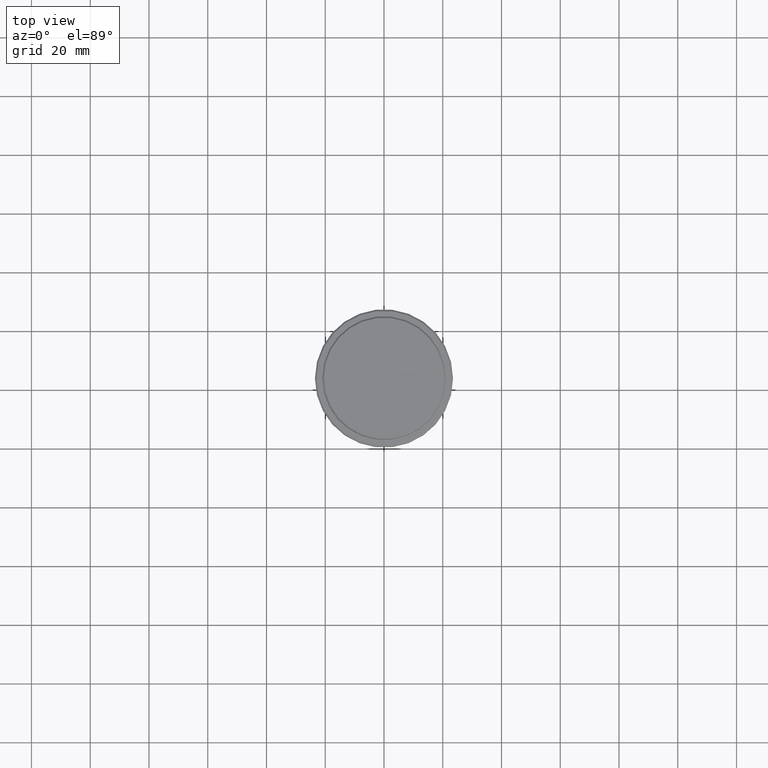
[diagram: clean part render]
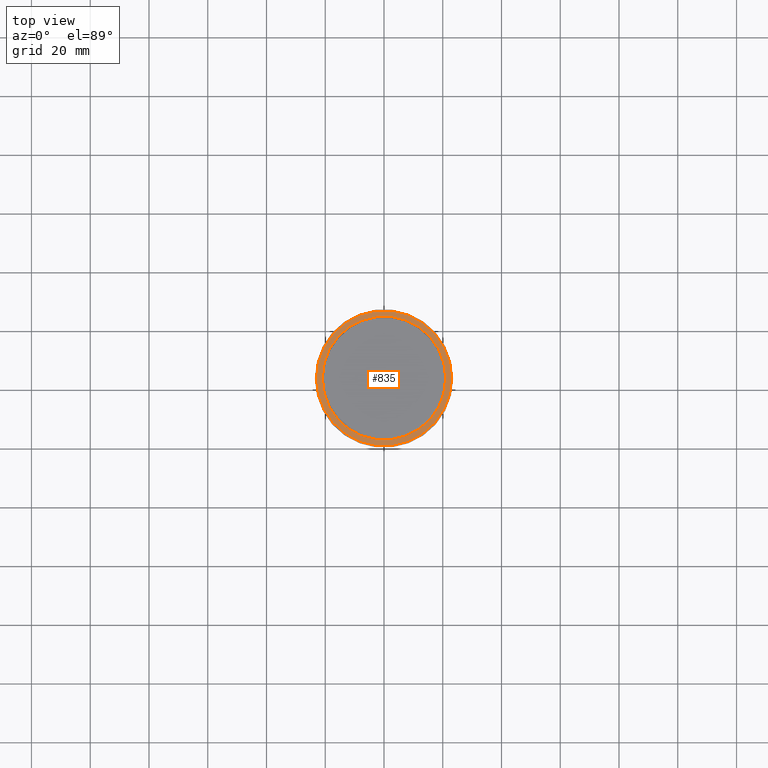
[diagram: same view with one face highlighted and labeled with its STEP entity id]
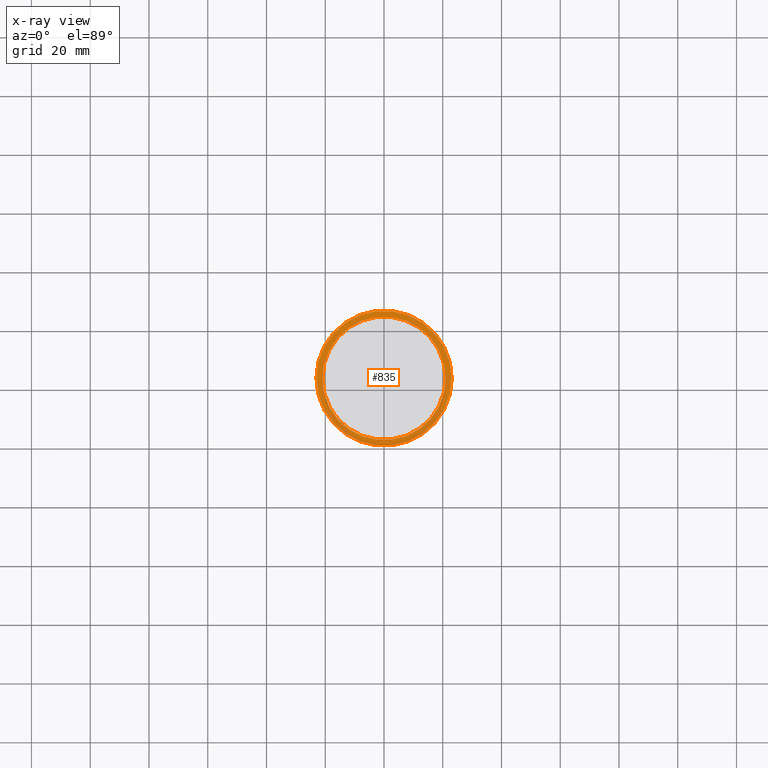
[diagram: x-ray of the same camera — body ghosted, the highlighted face saturated]
A machine part, top view. The second image highlights one B-rep face of the part: STEP entity #835.
The next image is the same camera in x-ray: the body ghosted, the highlighted face saturated — about 0% of this face is hidden behind the body in this view.
In plain terms, the highlighted planar face has unit normal (0, -0, 1).
Its self-contained STEP definition (entity closure, byte-faithful):
#2 = DIRECTION ( 'NONE',  ( 1.000000000000000000, 0.000000000000000000, 0.000000000000000000 ) ) ;
#187 = VERTEX_POINT ( 'NONE', #445 ) ;
#205 = ORIENTED_EDGE ( 'NONE', *, *, #1068, .T. ) ;
#262 = DIRECTION ( 'NONE',  ( 1.000000000000000000, 0.000000000000000000, 0.000000000000000000 ) ) ;
#339 = DIRECTION ( 'NONE',  ( -0.000000000000000000, -0.000000000000000000, 1.000000000000000000 ) ) ;
#350 = CARTESIAN_POINT ( 'NONE',  ( 23.00000000000002487, 2.847303808017597717E-15, -9.000000000000001776 ) ) ;
#355 = DIRECTION ( 'NONE',  ( 0.000000000000000000, 0.000000000000000000, -1.000000000000000000 ) ) ;
#365 = CARTESIAN_POINT ( 'NONE',  ( 0.000000000000000000, 0.000000000000000000, -9.000000000000001776 ) ) ;
#397 = DIRECTION ( 'NONE',  ( 1.000000000000000000, 0.000000000000000000, 0.000000000000000000 ) ) ;
#407 = EDGE_LOOP ( 'NONE', ( #934, #1071 ) ) ;
#444 = CARTESIAN_POINT ( 'NONE',  ( 20.99999999999999289, 0.000000000000000000, -9.000000000000001776 ) ) ;
#445 = CARTESIAN_POINT ( 'NONE',  ( -23.00000000000002487, 0.000000000000000000, -9.000000000000001776 ) ) ;
#464 = DIRECTION ( 'NONE',  ( -0.000000000000000000, -0.000000000000000000, 1.000000000000000000 ) ) ;
#465 = CIRCLE ( 'NONE', #1038, 20.99999999999999289 ) ;
#474 = EDGE_CURVE ( 'NONE', #1295, #187, #1236, .T. ) ;
#526 = CIRCLE ( 'NONE', #572, 20.99999999999999289 ) ;
#529 = VERTEX_POINT ( 'NONE', #444 ) ;
#564 = DIRECTION ( 'NONE',  ( 1.000000000000000000, 0.000000000000000000, 0.000000000000000000 ) ) ;
#572 = AXIS2_PLACEMENT_3D ( 'NONE', #365, #1332, #564 ) ;
#600 = FACE_BOUND ( 'NONE', #1204, .T. ) ;
#611 = AXIS2_PLACEMENT_3D ( 'NONE', #979, #339, #2 ) ;
#638 = AXIS2_PLACEMENT_3D ( 'NONE', #1216, #464, #262 ) ;
#651 = VERTEX_POINT ( 'NONE', #1023 ) ;
#753 = CIRCLE ( 'NONE', #638, 23.00000000000002487 ) ;
#829 = DIRECTION ( 'NONE',  ( 0.000000000000000000, -0.000000000000000000, 1.000000000000000000 ) ) ;
#835 = ADVANCED_FACE ( 'NONE', ( #1174, #600 ), #1048, .T. ) ;
#904 = AXIS2_PLACEMENT_3D ( 'NONE', #1373, #829, #397 ) ;
#934 = ORIENTED_EDGE ( 'NONE', *, *, #1028, .T. ) ;
#979 = CARTESIAN_POINT ( 'NONE',  ( 0.000000000000000000, 0.000000000000000000, -9.000000000000001776 ) ) ;
#1023 = CARTESIAN_POINT ( 'NONE',  ( -20.99999999999999289, 2.571758278209440872E-15, -9.000000000000001776 ) ) ;
#1028 = EDGE_CURVE ( 'NONE', #187, #1295, #753, .T. ) ;
#1038 = AXIS2_PLACEMENT_3D ( 'NONE', #1346, #355, #1368 ) ;
#1048 = PLANE ( 'NONE',  #904 ) ;
#1068 = EDGE_CURVE ( 'NONE', #651, #529, #526, .T. ) ;
#1071 = ORIENTED_EDGE ( 'NONE', *, *, #474, .T. ) ;
#1174 = FACE_OUTER_BOUND ( 'NONE', #407, .T. ) ;
#1204 = EDGE_LOOP ( 'NONE', ( #1267, #205 ) ) ;
#1216 = CARTESIAN_POINT ( 'NONE',  ( 0.000000000000000000, 0.000000000000000000, -9.000000000000001776 ) ) ;
#1236 = CIRCLE ( 'NONE', #611, 23.00000000000002487 ) ;
#1267 = ORIENTED_EDGE ( 'NONE', *, *, #1339, .T. ) ;
#1295 = VERTEX_POINT ( 'NONE', #350 ) ;
#1332 = DIRECTION ( 'NONE',  ( 0.000000000000000000, 0.000000000000000000, -1.000000000000000000 ) ) ;
#1339 = EDGE_CURVE ( 'NONE', #529, #651, #465, .T. ) ;
#1346 = CARTESIAN_POINT ( 'NONE',  ( 0.000000000000000000, 0.000000000000000000, -9.000000000000001776 ) ) ;
#1368 = DIRECTION ( 'NONE',  ( 1.000000000000000000, 0.000000000000000000, 0.000000000000000000 ) ) ;
#1373 = CARTESIAN_POINT ( 'NONE',  ( 0.000000000000000000, 20.49999999999999645, -9.000000000000001776 ) ) ;